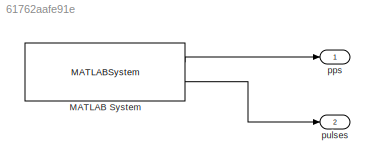
MODEL slx_61762aafe91e
KIND model
CONFIG AbsTol = auto
CONFIG FixedStep = auto
CONFIG MaxStep = auto
CONFIG MinStep = auto
CONFIG RelTol = 1e-3
CONFIG SampleTimeConstraint = Unconstrained
CONFIG Solver = FixedStepAuto
CONFIG SolverMode = Auto
CONFIG SolverName = FixedStepAuto
CONFIG StartTime = 0.0
CONFIG StopTime = 10.0
BLOCK [MATLABSystem] MATLAB System
  MaskDisplay = disp('frdmEncoderClass');\nport_label('output',1,'pps');\nport_label('output',2,'pulses');
  MaskType = frdmEncoderClass
  Ports = [0, 2]
  SimulateUsing = Code generation
  System = frdmEncoderClass
  channel = 0
BLOCK [Outport] pps
  IconDisplay = Port number
BLOCK [Outport] pulses
  IconDisplay = Port number
  Port = 2
LINE MATLAB System:1 -> pps:1
LINE MATLAB System:2 -> pulses:1
